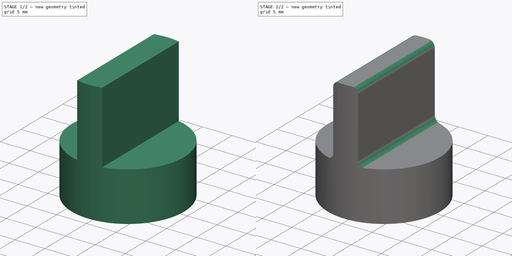
[diagram: build sequence overview — one tinted view per stage of 2, left to right]
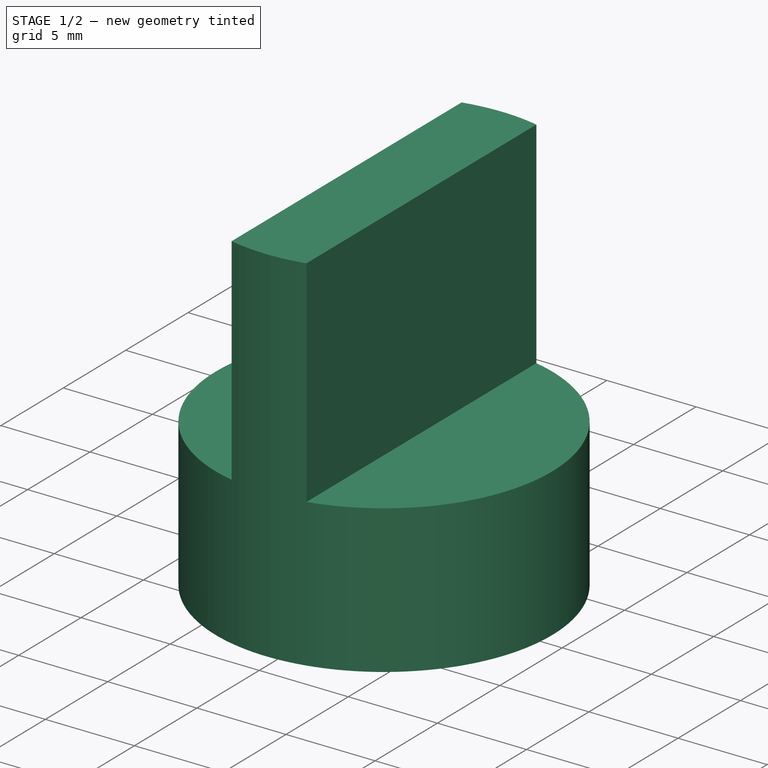
[diagram: stage 1 of 2 — iso view after this stage's code; geometry added in this stage tinted green]
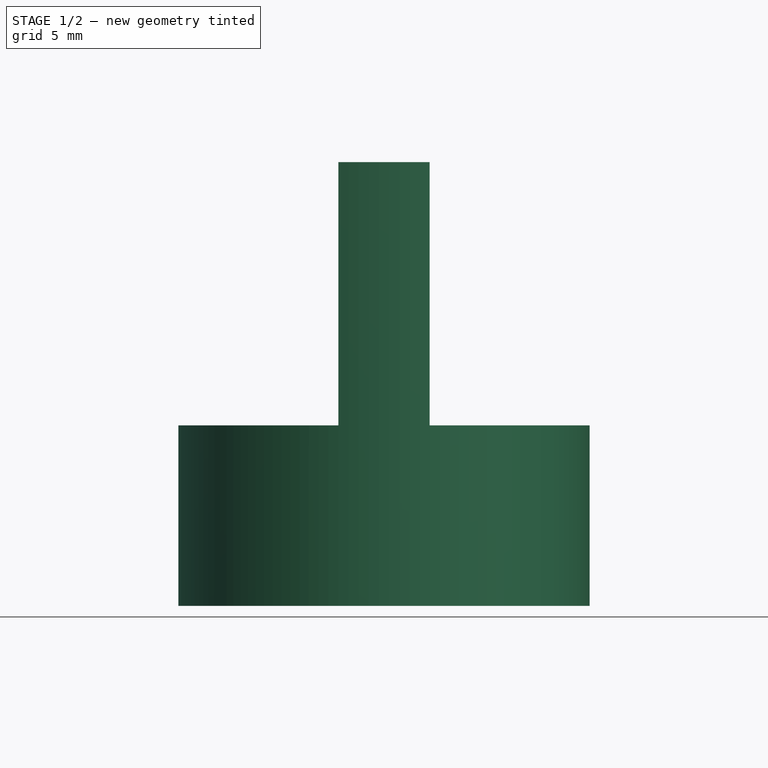
[diagram: stage 1 of 2 — front view after this stage's code; geometry added in this stage tinted green]
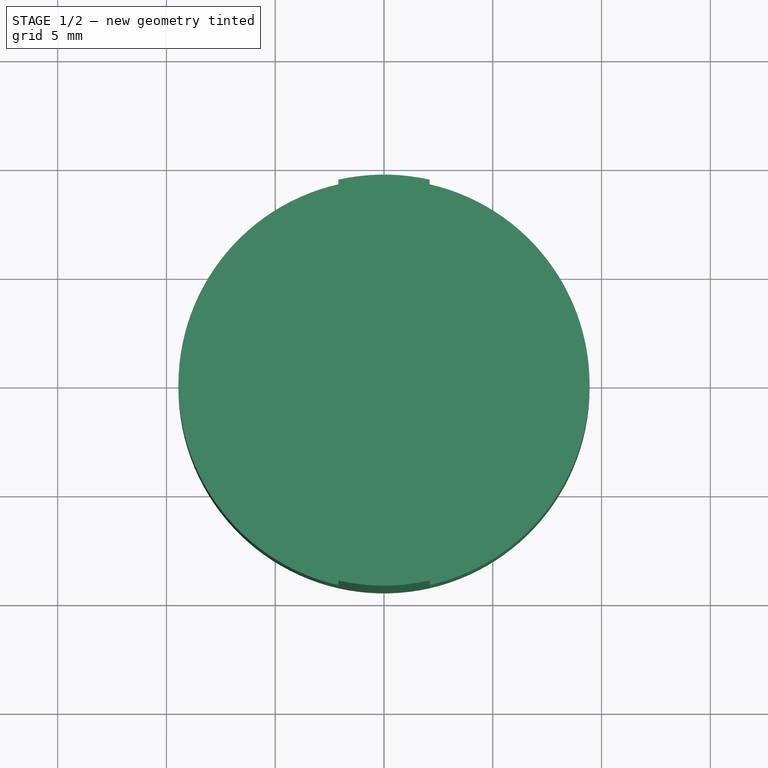
[diagram: stage 1 of 2 — top view after this stage's code; geometry added in this stage tinted green]
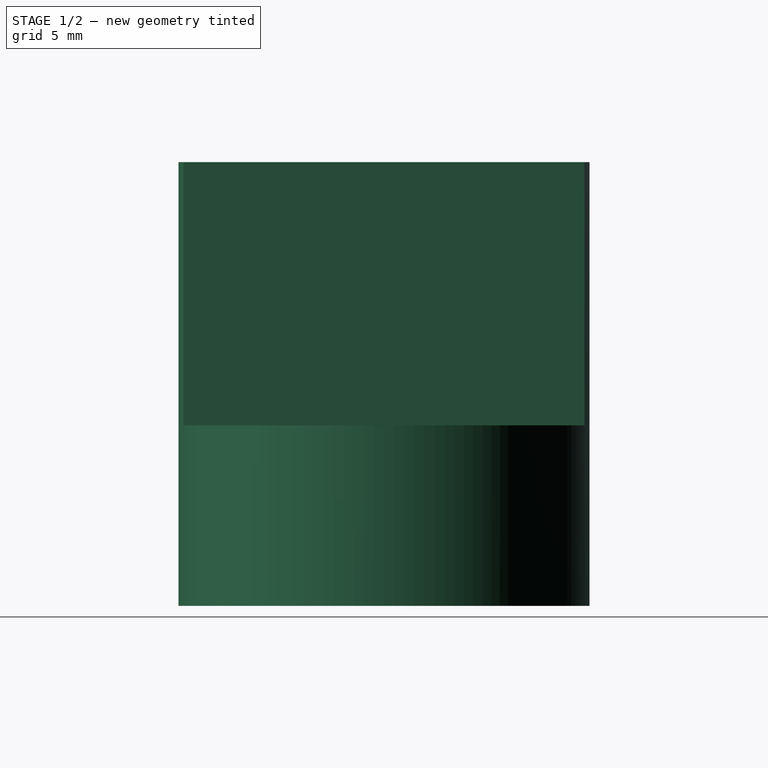
[diagram: stage 1 of 2 — right view after this stage's code; geometry added in this stage tinted green]
FCSTD DOCUMENT  (FreeCAD 1.1R38991 (Git))
Label: Пимпа под батарею
License: All rights reserved
LicenseURL: https://en.wikipedia.org/wiki/All_rights_reserved
objects: Sketcher::SketchObject×3, PartDesign::Pocket×2, PartDesign::Pad×1, PartDesign::Fillet×1, PartDesign::Body×1
note: 19 computed .brp shape members not serialized (recipe doc carries the construction recipe); baked Part::Feature solids carry a one-line shape summary decoded from their .brp

FEATURE [Sketcher::SketchObject] Sketch
  ArcFitTolerance = 1e-06
  AttachmentSupport = -> [XY_Plane]
  FullyConstrained = true
  MakeInternals = false
  MapMode = 5
  expr: Constraints[0] = 12.9 mm + 3 mm * 2
  sketch-geometry (1):
    g0: Circle CenterX=0 CenterY=0 CenterZ=0 NormalX=0 NormalY=0 NormalZ=1 AngleXU=0 Radius=9.45
  constraints (2):
    c: Diameter(g0) = 18.9
    c: Coincident(g0,g-1)
FEATURE [PartDesign::Pad] Pad
  Direction = (0,0,1)
  Length = 20.4
  Length2 = 10
  Profile = -> Sketch
  ReferenceAxis = -> Sketch [N_Axis]
  Refine = true
  Suppressed = false
  Type = 0
  expr: Length = 5.3 mm + 15.1 mm
FEATURE [Sketcher::SketchObject] Sketch001
  ArcFitTolerance = 1e-06
  AttachmentSupport = -> [Pad]
  ExternalGeometry = -> [Pad]
  FullyConstrained = false
  MakeInternals = false
  MapMode = 5
  Placement = pos=(0,0,20.4) rot=(0,0,1;0rad)
  sketch-geometry (10):
    g0: LineSegment [constr] StartX=-2.10001 StartY=9.21371 StartZ=0 EndX=-2.10001 EndY=-9.21371 EndZ=0
    g1: LineSegment [constr] StartX=2.09999 StartY=9.21371 StartZ=0 EndX=2.09999 EndY=-9.21371 EndZ=0
    g2: ArcOfCircle [constr] CenterX=0 CenterY=0 CenterZ=0 NormalX=0 NormalY=0 NormalZ=1 AngleXU=0 Radius=9.45 StartAngle=1.3467 EndAngle=1.79489
    g3: ArcOfCircle [constr] CenterX=0 CenterY=0 CenterZ=0 NormalX=0 NormalY=0 NormalZ=1 AngleXU=0 Radius=9.45 StartAngle=4.4883 EndAngle=4.93648
    g4: LineSegment [constr] StartX=-2.10001 StartY=9.21371 StartZ=0 EndX=-5.76593e-06 EndY=9.21371 EndZ=0
    g5: LineSegment [constr] StartX=-5.76593e-06 StartY=9.21371 StartZ=0 EndX=2.09999 EndY=9.21371 EndZ=0
    g6: ArcOfCircle CenterX=0 CenterY=-4.5939e-12 CenterZ=0 NormalX=0 NormalY=0 NormalZ=1 AngleXU=0 Radius=9.45 StartAngle=1.79489 EndAngle=4.4883
    g7: ArcOfCircle CenterX=0 CenterY=-4.5939e-12 CenterZ=0 NormalX=0 NormalY=0 NormalZ=1 AngleXU=0 Radius=9.45 StartAngle=4.93648 EndAngle=7.62989
    g8: LineSegment StartX=-2.10001 StartY=9.21371 StartZ=0 EndX=-2.10001 EndY=-9.21371 EndZ=0
    g9: LineSegment StartX=2.09999 StartY=-9.21371 StartZ=0 EndX=2.09999 EndY=9.21371 EndZ=0
  constraints (25):
    c: PointOnObject(g0,g-3)
    c: Coincident(g2,g-1)
    c: Coincident(g2,g0)
    c: Coincident(g2,g1)
    c: Coincident(g3,g1)
    c: Coincident(g4,g0)
    c: Coincident(g5,g4)
    c: Coincident(g5,g1)
    c: DistanceX(g0,g1) = 4.2
    c: Coincident(g3,g0)
    c: Coincident(g3,g2)
    c: Coincident(g7,g6)
    c: Coincident(g7,g1)
    c: Coincident(g7,g1)
    c: Coincident(g9,g1)
    c: Coincident(g9,g1)
    c: Vertical(g9)
    c: Vertical(g0)
    c: Coincident(g0,g6)
    c: Coincident(g8,g0)
    c: Coincident(g6,g0)
    c: Coincident(g8,g0)
    c: PointOnObject(g6,g-2)
    c: Equal(g4,g5)
    c: Horizontal(g4)
FEATURE [PartDesign::Pocket] Pocket
  BaseFeature = -> Pad
  Direction = (0,0,-1)
  Length = 12.1
  Length2 = 5
  Profile = -> Sketch001
  ReferenceAxis = -> Sketch001 [N_Axis]
  Refine = true
  Suppressed = false
  Type = 0
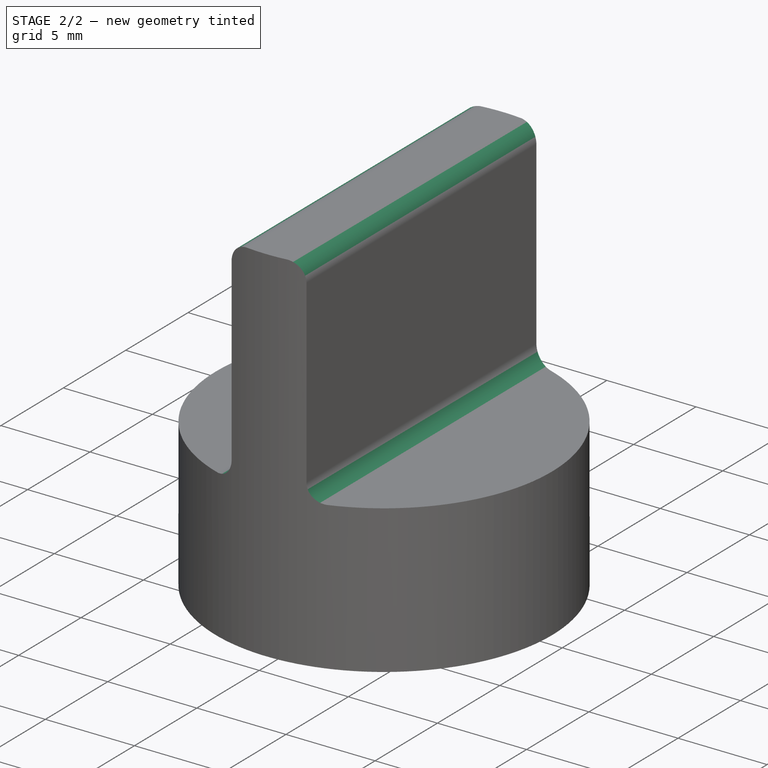
[diagram: stage 2 of 2 — iso view after this stage's code; geometry added in this stage tinted green]
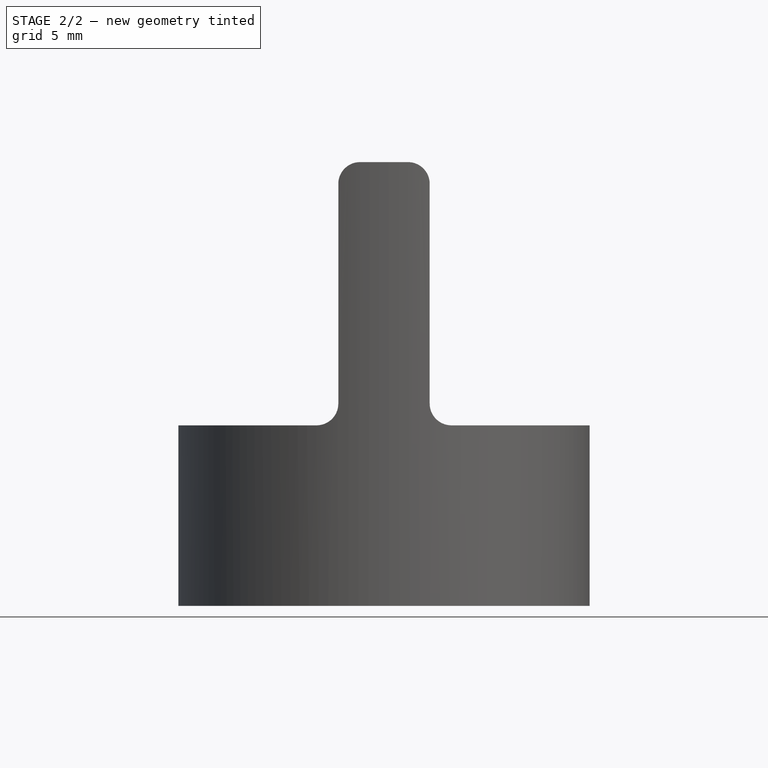
[diagram: stage 2 of 2 — front view after this stage's code; geometry added in this stage tinted green]
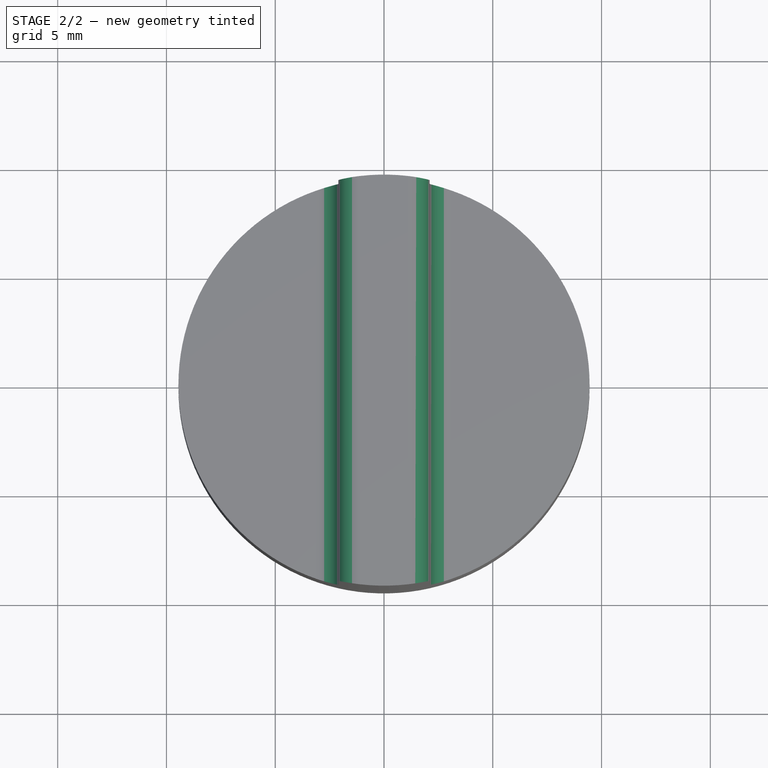
[diagram: stage 2 of 2 — top view after this stage's code; geometry added in this stage tinted green]
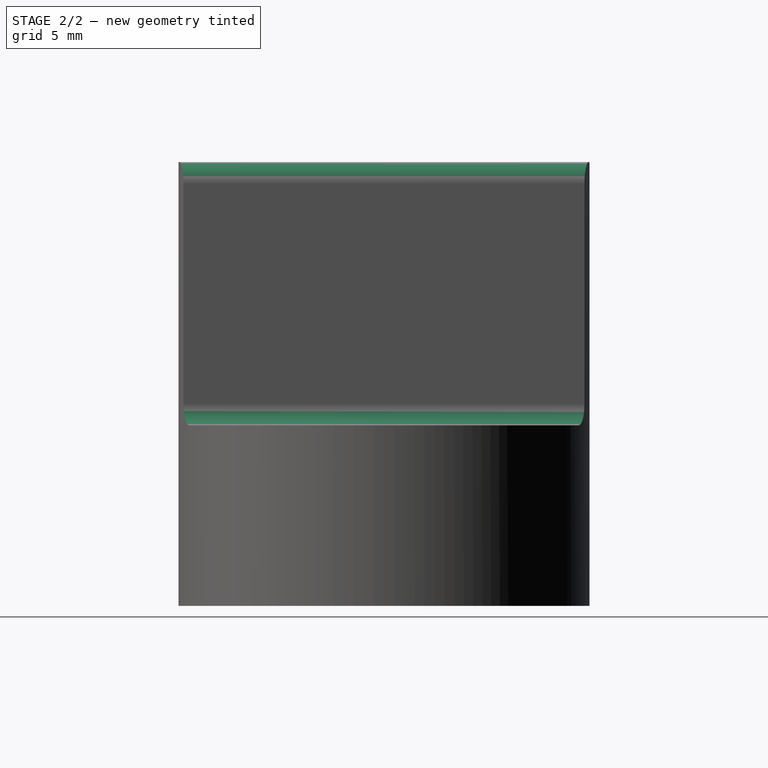
[diagram: stage 2 of 2 — right view after this stage's code; geometry added in this stage tinted green]
FEATURE [PartDesign::Fillet] Fillet
  Base = -> Pocket [Edge13,Edge14,Edge12,Edge15]
  BaseFeature = -> Pocket
  Radius = 1
  Refine = true
  SupportTransform = false
  Suppressed = false
  UseAllEdges = false
FEATURE [Sketcher::SketchObject] Sketch002
  ArcFitTolerance = 1e-06
  AttachmentSupport = -> [Fillet]
  FullyConstrained = true
  MakeInternals = false
  MapMode = 5
  Placement = pos=(0,0,0) rot=(1,0,0;3.14159rad)
  sketch-geometry (7):
    g0: LineSegment StartX=-3.72391 StartY=6.45 StartZ=0 EndX=-7.44782 EndY=9e-16 EndZ=0
    g1: LineSegment StartX=-7.44782 StartY=8e-16 StartZ=0 EndX=-3.72391 EndY=-6.45 EndZ=0
    g2: LineSegment StartX=-3.72391 StartY=-6.45 StartZ=0 EndX=3.72391 EndY=-6.45 EndZ=0
    g3: LineSegment StartX=3.72391 StartY=-6.45 StartZ=0 EndX=7.44782 EndY=0 EndZ=0
    g4: LineSegment StartX=7.44782 StartY=0 StartZ=0 EndX=3.72391 EndY=6.45 EndZ=0
    g5: LineSegment StartX=3.72391 StartY=6.45 StartZ=0 EndX=-3.72391 EndY=6.45 EndZ=0
    g6: Circle [constr] CenterX=0 CenterY=0 CenterZ=0 NormalX=0 NormalY=0 NormalZ=1 AngleXU=0 Radius=7.44782
  constraints (16):
    c: Coincident(g0,g1)
    c: Coincident(g1,g2)
    c: Coincident(g2,g3)
    c: Coincident(g3,g4)
    c: Coincident(g4,g5)
    c: Coincident(g5,g0)
    c: Equal(g0, g1-g5) x5
    c: PointOnObject(g0,g6)
    c: PointOnObject(g1,g6)
    c: PointOnObject(g2,g6)
    c: PointOnObject(g3,g6)
    c: PointOnObject(g4,g6)
    c: PointOnObject(g5,g6)
    c: Coincident(g6,g-1)
    c: DistanceY(g2,g4) = 12.9
    c: Horizontal(g5)
FEATURE [PartDesign::Pocket] Pocket001
  BaseFeature = -> Fillet
  Direction = (0,0,1)
  Length = 5.3
  Length2 = 5
  Profile = -> Sketch002
  ReferenceAxis = -> Sketch002 [N_Axis]
  Refine = true
  Suppressed = false
  Type = 0
FEATURE [PartDesign::Body] Body  label="Тело"
  AllowCompound = false
  Group = -> [Sketch,Pad,Sketch001,Pocket,Fillet,Sketch002,Pocket001]
  Origin = -> Origin
  Tip = -> Pocket001
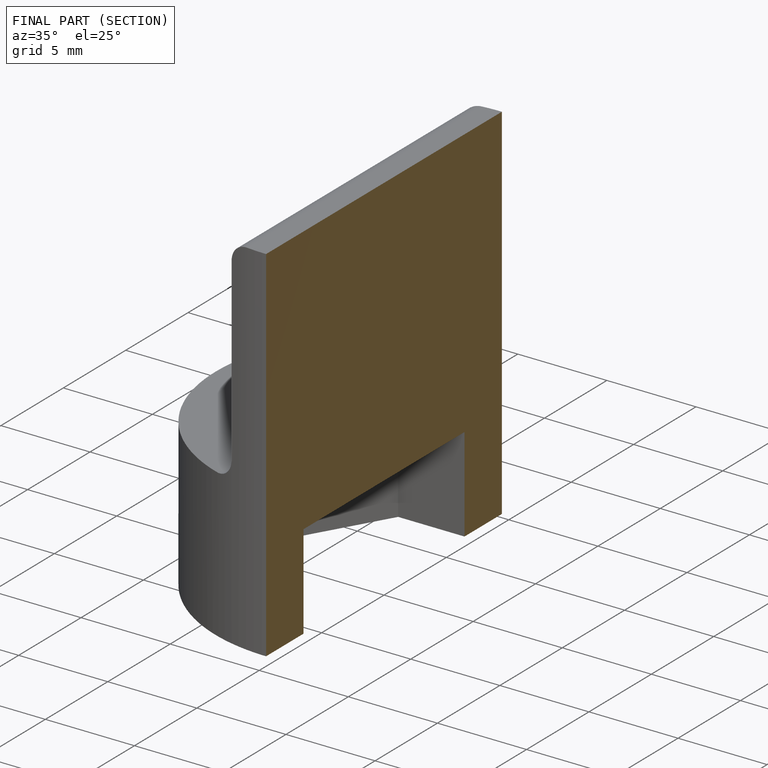
[diagram: finished part — half-section view (interior)]
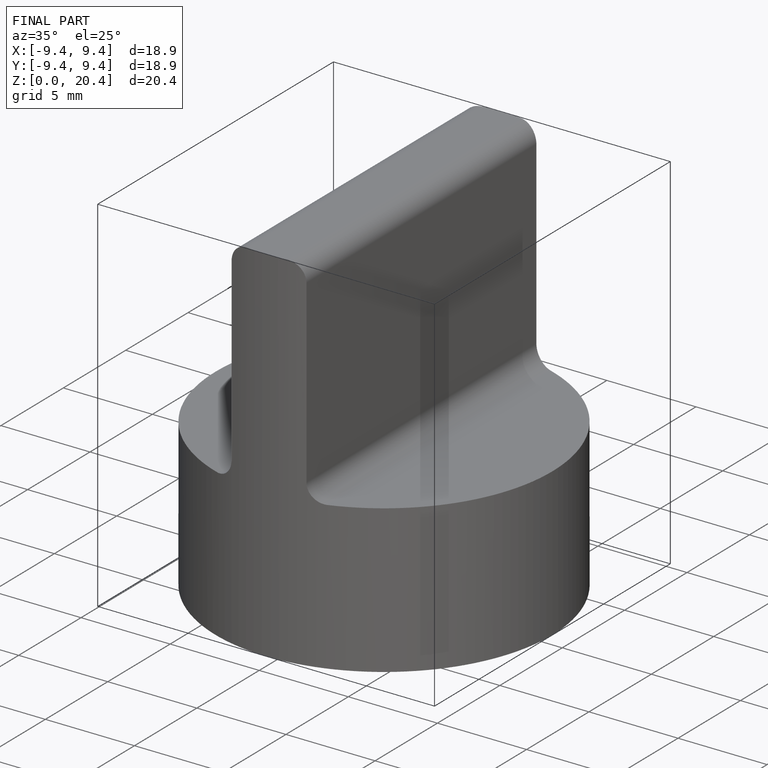
[diagram: finished part — iso view with bounding-box wireframe]
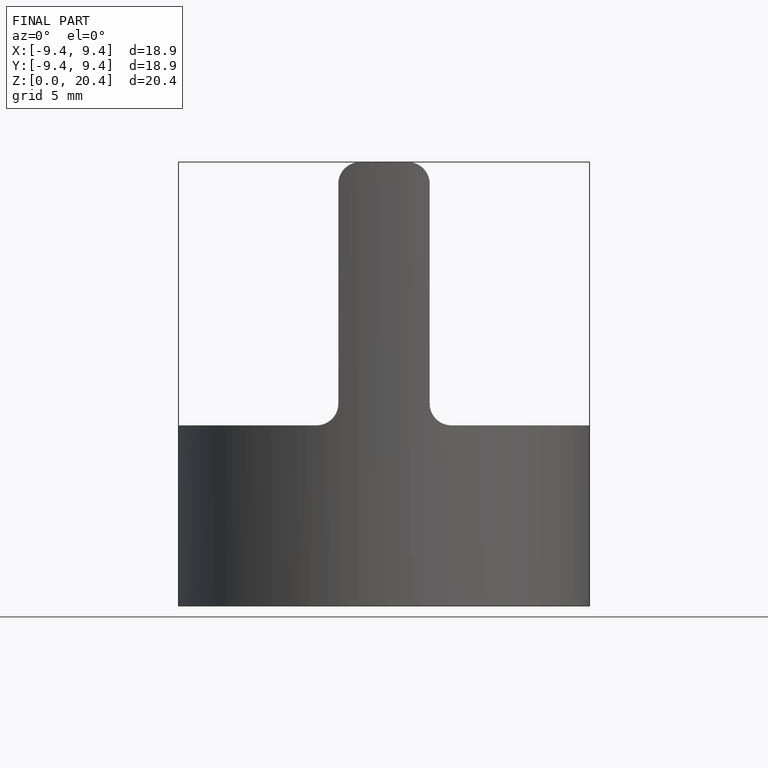
[diagram: finished part — front view with bounding-box wireframe]
